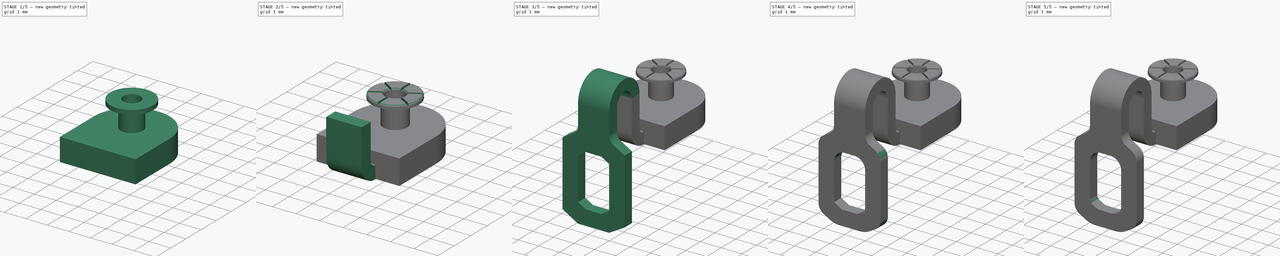
[diagram: build sequence overview — one tinted view per stage of 5, left to right]
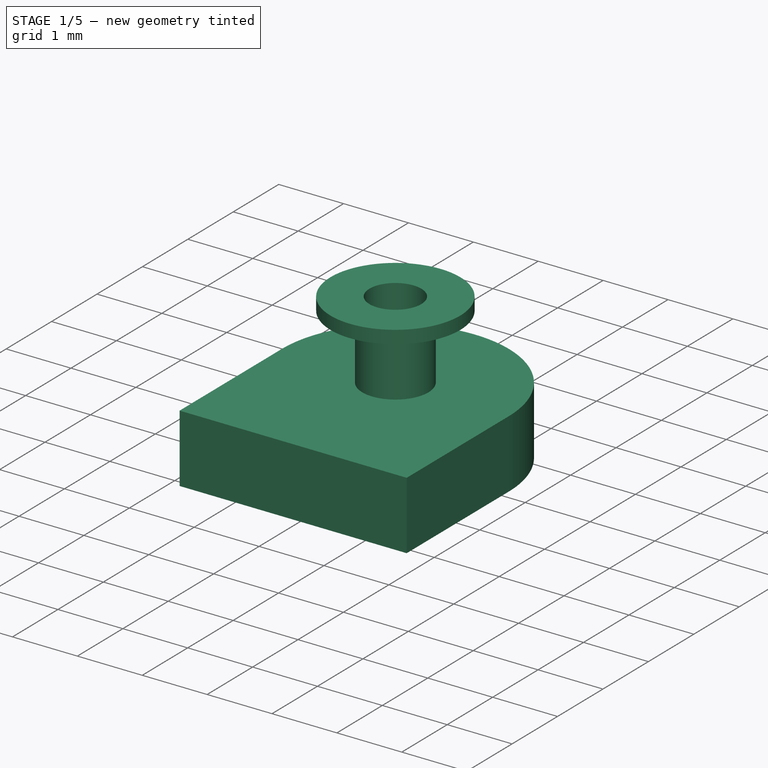
[diagram: stage 1 of 5 — iso view after this stage's code; geometry added in this stage tinted green]
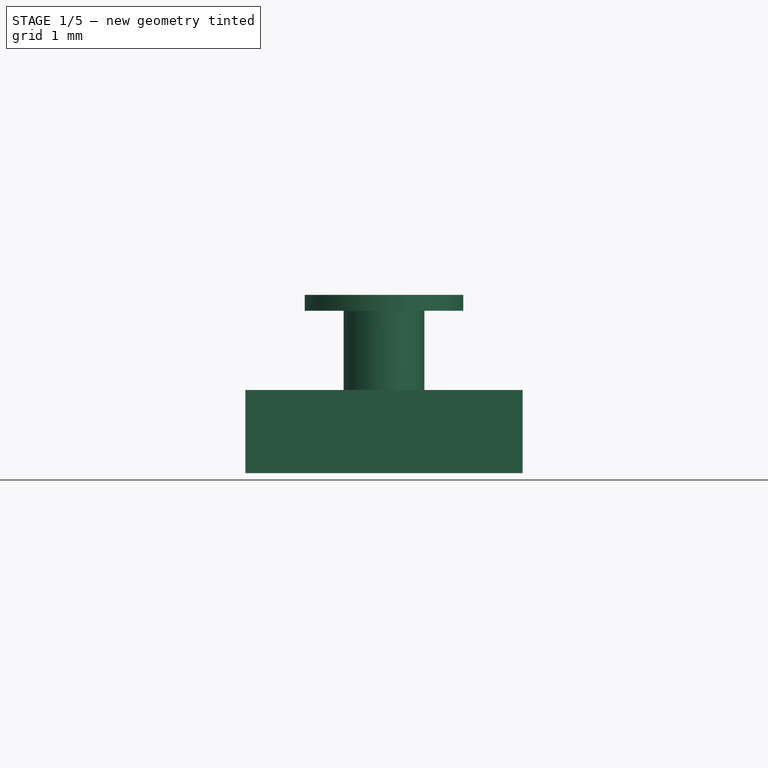
[diagram: stage 1 of 5 — front view after this stage's code; geometry added in this stage tinted green]
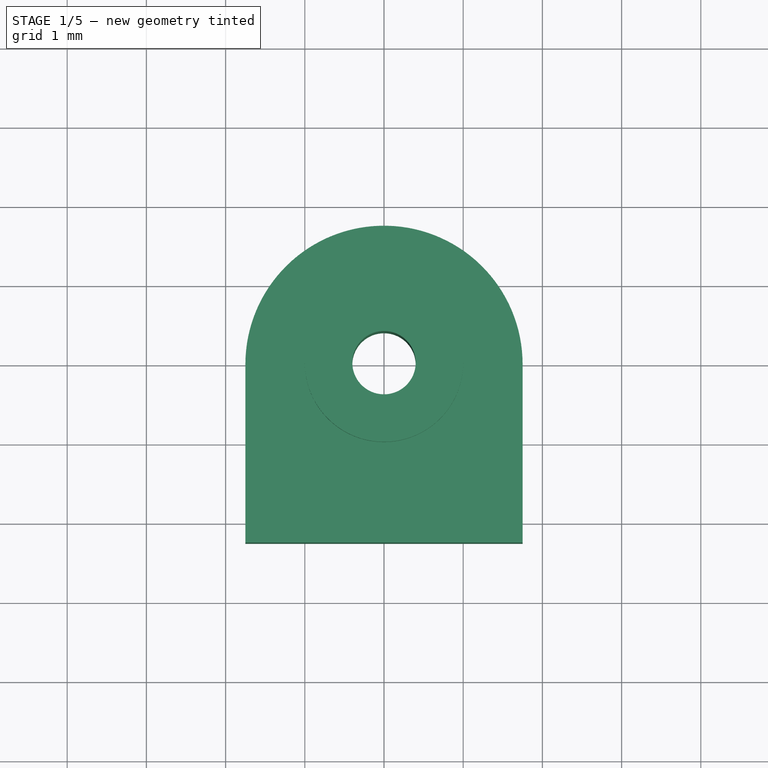
[diagram: stage 1 of 5 — top view after this stage's code; geometry added in this stage tinted green]
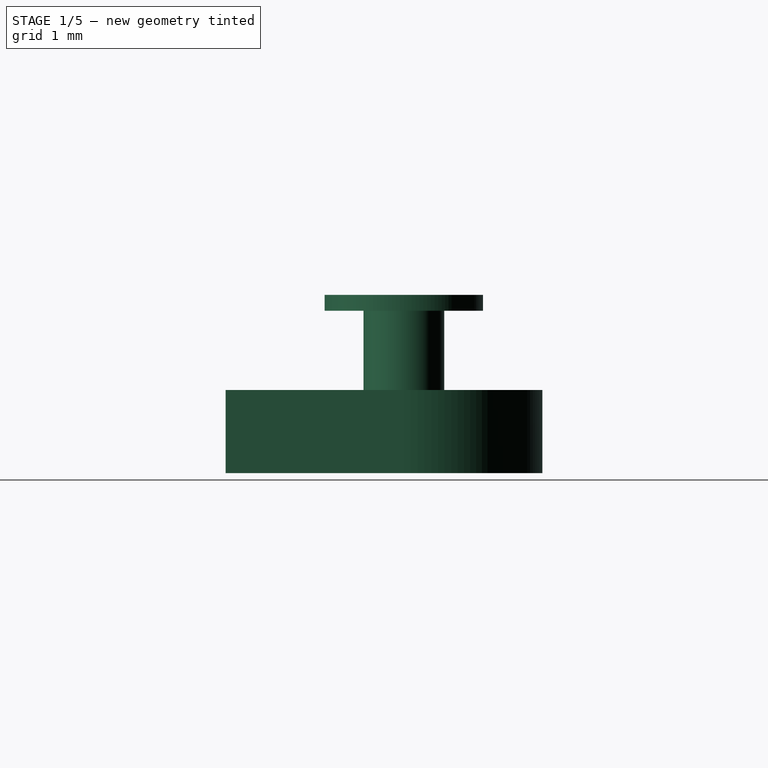
[diagram: stage 1 of 5 — right view after this stage's code; geometry added in this stage tinted green]
FCSTD DOCUMENT  (FreeCAD 0.19R16699 (Git))
Label: RV16A01_Terminal_Type_10_3x
License: All rights reserved
LicenseURL: http://en.wikipedia.org/wiki/All_rights_reserved
objects: PartDesign::Fillet×10, Sketcher::SketchObject×7, PartDesign::Pad×5, PartDesign::Body×3, PartDesign::Pocket×2, PartDesign::FeaturePython×2, PartDesign::FeatureBase×2, PartDesign::PolarPattern×1, App::Part×1
note: 39 computed .brp shape members not serialized (recipe doc carries the construction recipe); baked Part::Feature solids carry a one-line shape summary decoded from their .brp

FEATURE [Sketcher::SketchObject] Sketch
  MapMode = 5
  Support = -> [XY_Plane]
  sketch-geometry (8):
    g0: Circle CenterX=0 CenterY=0 CenterZ=0 NormalX=0 NormalY=0 NormalZ=1 AngleXU=0 Radius=0.5
    g1: ArcOfCircle CenterX=0 CenterY=0 CenterZ=0 NormalX=0 NormalY=0 NormalZ=1 AngleXU=0 Radius=1.75 StartAngle=0 EndAngle=3.14159
    g2: LineSegment StartX=1.75 StartY=-2.25 StartZ=0 EndX=1.75 EndY=0 EndZ=0
    g3: LineSegment StartX=-1.75 StartY=2e-16 StartZ=0 EndX=-1.75 EndY=-2.25 EndZ=0
    g4: GeomPoint X=0 Y=1.75 Z=0
    g5: LineSegment StartX=-0.75 StartY=-2.25 StartZ=0 EndX=0.75 EndY=-2.25 EndZ=0
    g6: LineSegment StartX=-0.75 StartY=-2.25 StartZ=0 EndX=-1.75 EndY=-2.25 EndZ=0
    g7: LineSegment StartX=0.75 StartY=-2.25 StartZ=0 EndX=1.75 EndY=-2.25 EndZ=0
  constraints (21):
    c: Radius(g0) = 0.5
    c: Coincident(g1,g0)
    c: Coincident(g2,g1)
    c: Vertical(g2)
    c: Coincident(g3,g1)
    c: PointOnObject(g4,g1)
    c: Coincident(g0,g-1)
    c: Vertical(g3)
    c: PointOnObject(g1,g-1)
    c: PointOnObject(g1,g-1)
    c: PointOnObject(g4,g-2)
    c: Symmetric(g5,g5,g-2)
    c: DistanceX(g5,g5) = 1.5
    c: Coincident(g6,g5)
    c: Horizontal(g6)
    c: Coincident(g7,g5)
    c: Horizontal(g7)
    c: Coincident(g3,g6)
    c: Coincident(g2,g7)
    c: DistanceX(g3,g2) = 3.5
    c: DistanceY(g3,g3) = 2.25
FEATURE [PartDesign::Pad] Pad
  Length = 0.5
  Length2 = 0.55
  Profile = -> Sketch
  Type = 4
FEATURE [Sketcher::SketchObject] Sketch002
  MapMode = 5
  Support = -> [XY_Plane]
  sketch-geometry (2):
    g0: Circle CenterX=0 CenterY=0 CenterZ=0 NormalX=0 NormalY=0 NormalZ=1 AngleXU=0 Radius=0.51
    g1: Circle CenterX=0 CenterY=0 CenterZ=0 NormalX=0 NormalY=0 NormalZ=1 AngleXU=0 Radius=0.4
  constraints (4):
    c: Coincident(g0,g-1)
    c: Coincident(g1,g0)
    c: Radius(g0) = 0.51
    c: Radius(g1) = 0.4
FEATURE [PartDesign::Pad] Pad001
  BaseFeature = -> Pad
  Length = 1.5
  Length2 = 100
  Profile = -> Sketch002
  Type = 0
FEATURE [Sketcher::SketchObject] Sketch003
  AttachmentOffset = pos=(0,0,1.5) rot=(0,0,1;0rad)
  MapMode = 5
  Placement = pos=(0,0,1.5) rot=(0,0,1;0rad)
  Support = -> [XY_Plane]
  sketch-geometry (1):
    g0: Circle CenterX=0 CenterY=0 CenterZ=0 NormalX=0 NormalY=0 NormalZ=1 AngleXU=0 Radius=1
  constraints (2):
    c: Coincident(g0,g-1)
    c: Radius(g0) = 1
FEATURE [PartDesign::Pad] Pad002
  BaseFeature = -> Pad001
  Length = 0.2
  Length2 = 100
  Profile = -> Sketch003
  Type = 0
FEATURE [Sketcher::SketchObject] Sketch004
  AttachmentOffset = pos=(0,0,1.7) rot=(0,0,1;0rad)
  MapMode = 5
  Placement = pos=(0,0,1.7) rot=(0,0,1;0rad)
  Support = -> [XY_Plane]
  sketch-geometry (1):
    g0: Circle CenterX=0 CenterY=0 CenterZ=0 NormalX=0 NormalY=0 NormalZ=1 AngleXU=0 Radius=0.4
  constraints (2):
    c: Coincident(g0,g-1)
    c: Radius(g0) = 0.4
FEATURE [PartDesign::Pocket] Pocket001
  BaseFeature = -> Pad002
  Length = 1
  Length2 = 100
  Profile = -> Sketch004
  Type = 0
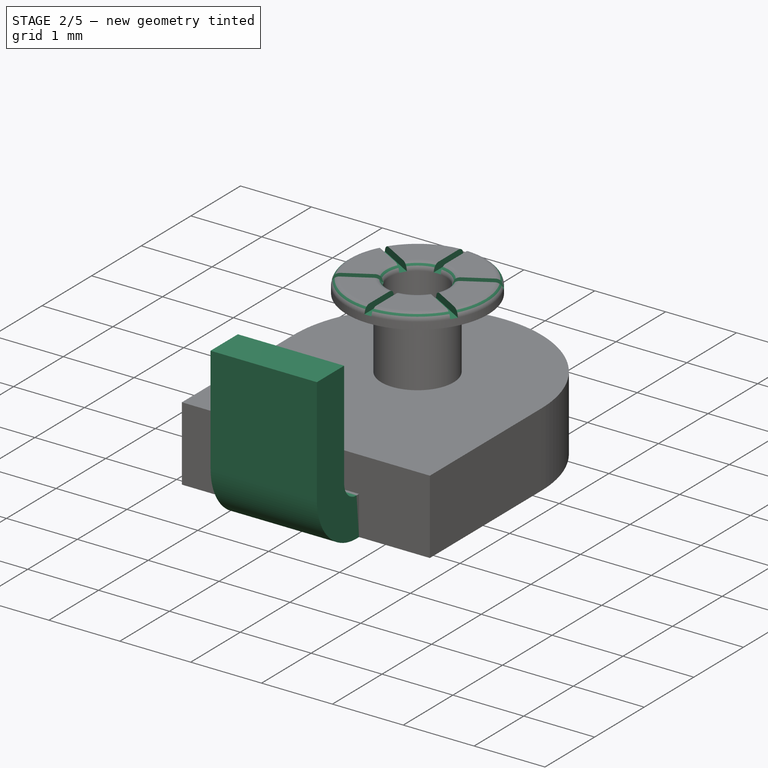
[diagram: stage 2 of 5 — iso view after this stage's code; geometry added in this stage tinted green]
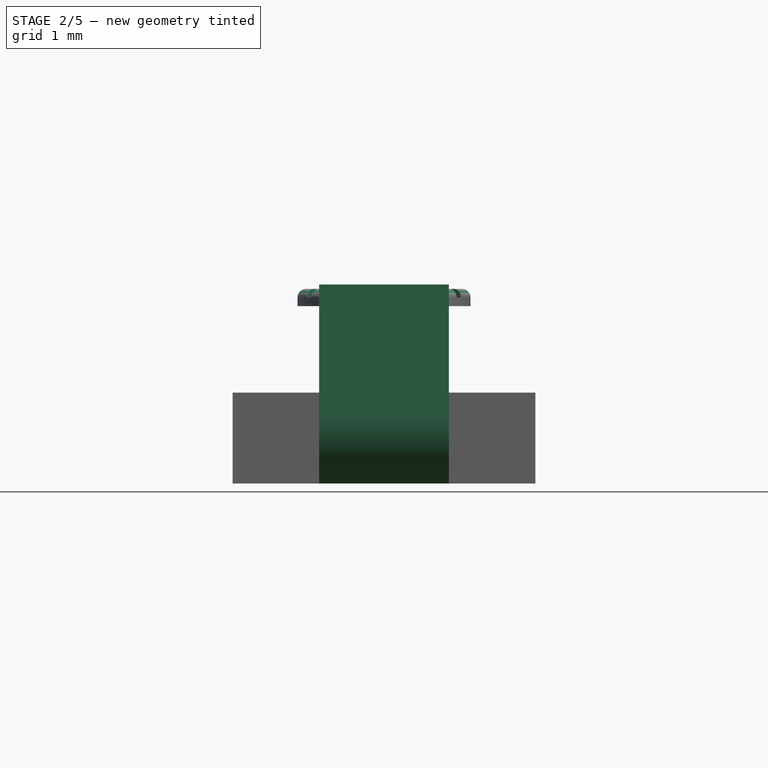
[diagram: stage 2 of 5 — front view after this stage's code; geometry added in this stage tinted green]
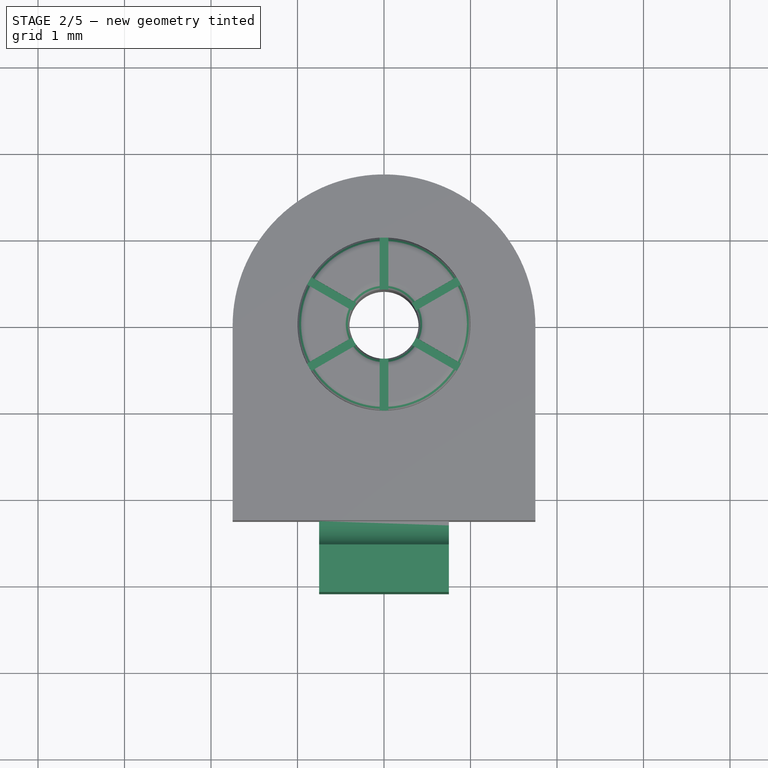
[diagram: stage 2 of 5 — top view after this stage's code; geometry added in this stage tinted green]
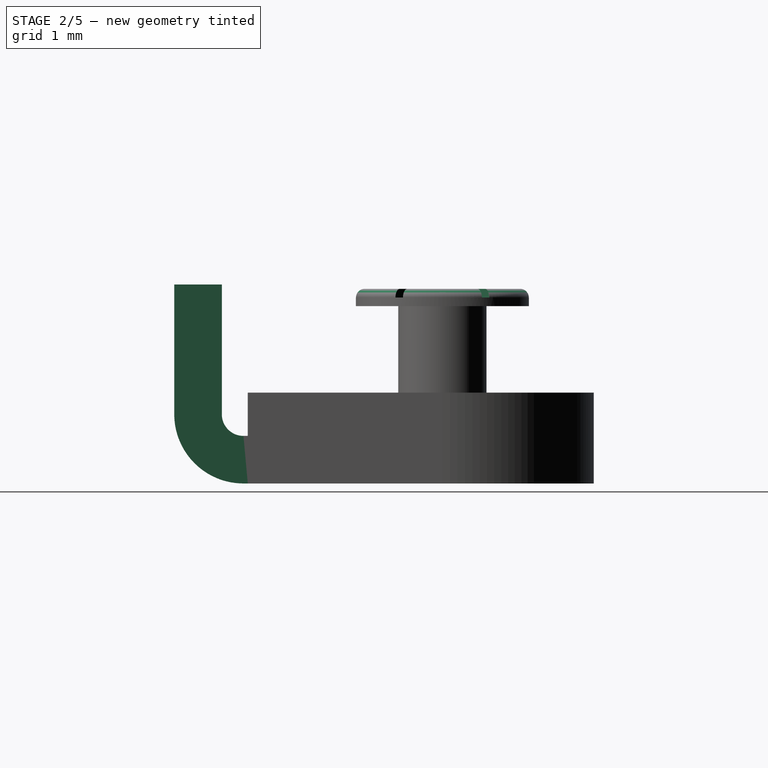
[diagram: stage 2 of 5 — right view after this stage's code; geometry added in this stage tinted green]
FEATURE [Sketcher::SketchObject] Sketch005
  AttachmentOffset = pos=(0,0,1.7) rot=(0,0,1;0rad)
  MapMode = 5
  Placement = pos=(0,0,1.7) rot=(0,0,1;0rad)
  Support = -> [XY_Plane]
  sketch-geometry (4):
    g0: LineSegment StartX=-0.05 StartY=0 StartZ=0 EndX=-0.05 EndY=1.7847 EndZ=0
    g1: LineSegment StartX=0.05 StartY=1.7847 StartZ=0 EndX=0.05 EndY=0 EndZ=0
    g2: LineSegment StartX=-0.05 StartY=1.7847 StartZ=0 EndX=0.05 EndY=1.7847 EndZ=0
    g3: LineSegment StartX=-0.05 StartY=0 StartZ=0 EndX=0.05 EndY=0 EndZ=0
  constraints (10):
    c: PointOnObject(g0,g-1)
    c: Vertical(g0)
    c: PointOnObject(g1,g-1)
    c: Vertical(g1)
    c: Coincident(g2,g0)
    c: Coincident(g2,g1)
    c: Coincident(g3,g0)
    c: Coincident(g3,g1)
    c: DistanceX(g2,g2) = 0.1
    c: Symmetric(g1,g0,g-2)
FEATURE [PartDesign::Fillet] Fillet
  Base = -> Pocket001 [Edge5,Edge3]
  BaseFeature = -> Pocket001
  Radius = 0.1
FEATURE [PartDesign::Pocket] Pocket002
  BaseFeature = -> Fillet
  Length = 0.1
  Length2 = 100
  Profile = -> Sketch005
  Type = 0
FEATURE [PartDesign::PolarPattern] PolarPattern
  Angle = 360
  Axis = -> Sketch005 [N_Axis]
  BaseFeature = -> Pocket002
  Occurrences = 6
  Originals = -> [Pocket002]
FEATURE [Sketcher::SketchObject] Sketch006
  AttachmentOffset = pos=(0,0,2.25) rot=(0,0,1;0rad)
  MapMode = 5
  Placement = pos=(0,-2.25,-5e-16) rot=(1,0,0;1.5708rad)
  Support = -> [XZ_Plane]
  sketch-geometry (4):
    g0: LineSegment StartX=-0.75 StartY=-0.55 StartZ=0 EndX=0.75 EndY=-0.55 EndZ=0
    g1: LineSegment StartX=0.75 StartY=-0.55 StartZ=0 EndX=0.75 EndY=0 EndZ=0
    g2: LineSegment StartX=0.75 StartY=0 StartZ=0 EndX=-0.75 EndY=0 EndZ=0
    g3: LineSegment StartX=-0.75 StartY=0 StartZ=0 EndX=-0.75 EndY=-0.55 EndZ=0
  constraints (11):
    c: Coincident(g0,g1)
    c: Coincident(g1,g2)
    c: Coincident(g2,g3)
    c: Coincident(g3,g0)
    c: Horizontal(g0)
    c: Vertical(g1)
    c: Vertical(g3)
    c: Symmetric(g1,g2,g-2)
    c: DistanceX(g2,g2) = 1.5
    c: DistanceY(g3,g3) = 0.55
    c: PointOnObject(g1,g-1)
FEATURE [PartDesign::Pad] Pad003
  BaseFeature = -> PolarPattern
  Length = 0.05
  Length2 = 100
  Profile = -> Sketch006
  Type = 0
FEATURE [PartDesign::FeaturePython] Bend  # WARN: FeaturePython — macro-defined, semantics opaque (R4)
  AutoMiter = true
  BaseFeature = -> Pad003
  BendType = 0
  LengthList = [1.5]
  ReliefFactor = 0.7
  UseReliefFactor = false
  angle = 90
  baseObject = -> Pad003 [Face59]
  bendAList = [90]
  extend1 = 0
  extend2 = 0
  gap1 = 0
  gap2 = 0
  invert = false
  kfactor = 0.5
  length = 1.5
  miterangle1 = 0
  miterangle2 = 0
  offset = 0
  radius = 0.25
  reliefType = 0
  reliefd = 1
  reliefw = 0.8
  sketchflip = false
  sketchinvert = false
  unfold = false
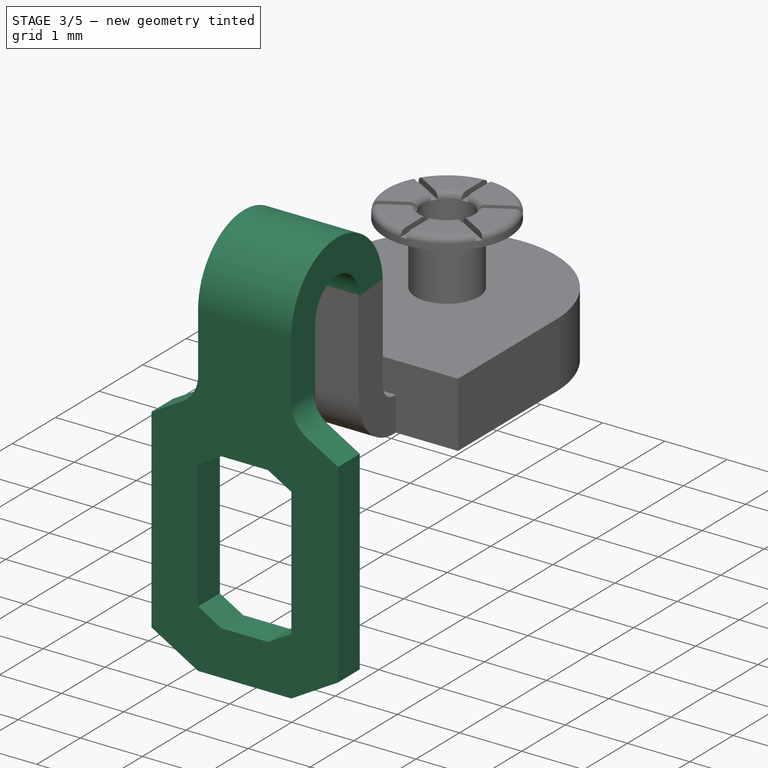
[diagram: stage 3 of 5 — iso view after this stage's code; geometry added in this stage tinted green]
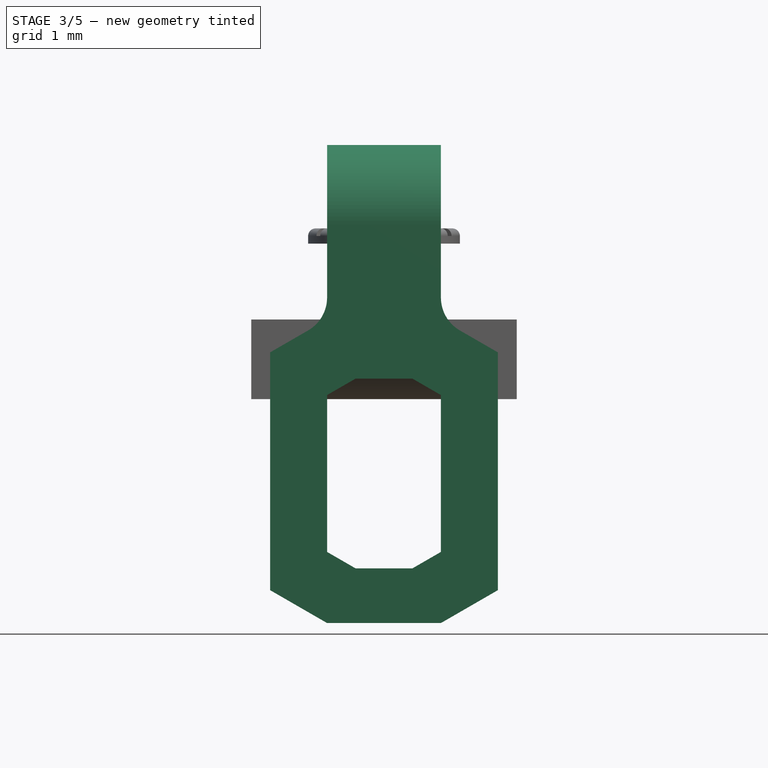
[diagram: stage 3 of 5 — front view after this stage's code; geometry added in this stage tinted green]
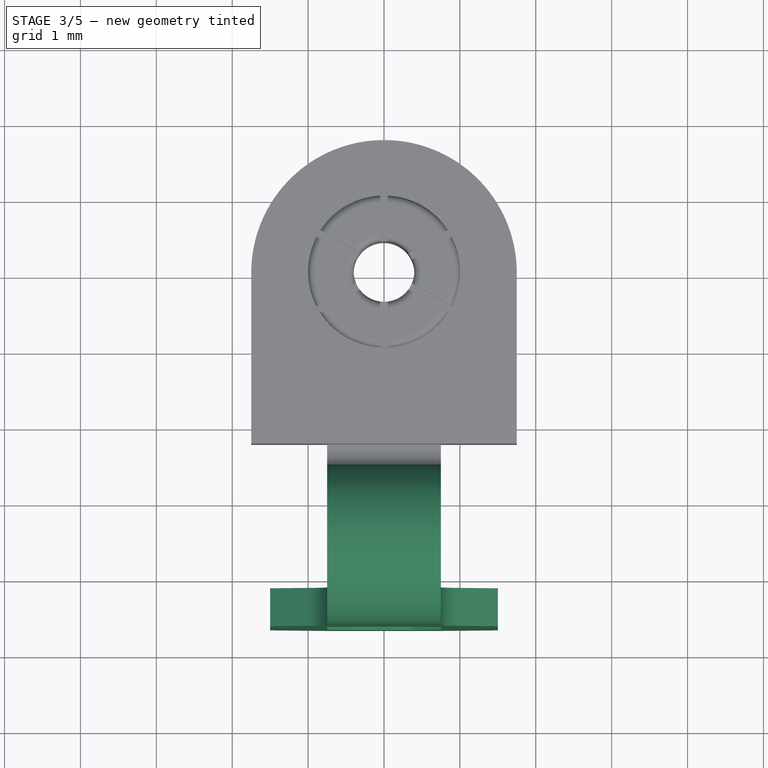
[diagram: stage 3 of 5 — top view after this stage's code; geometry added in this stage tinted green]
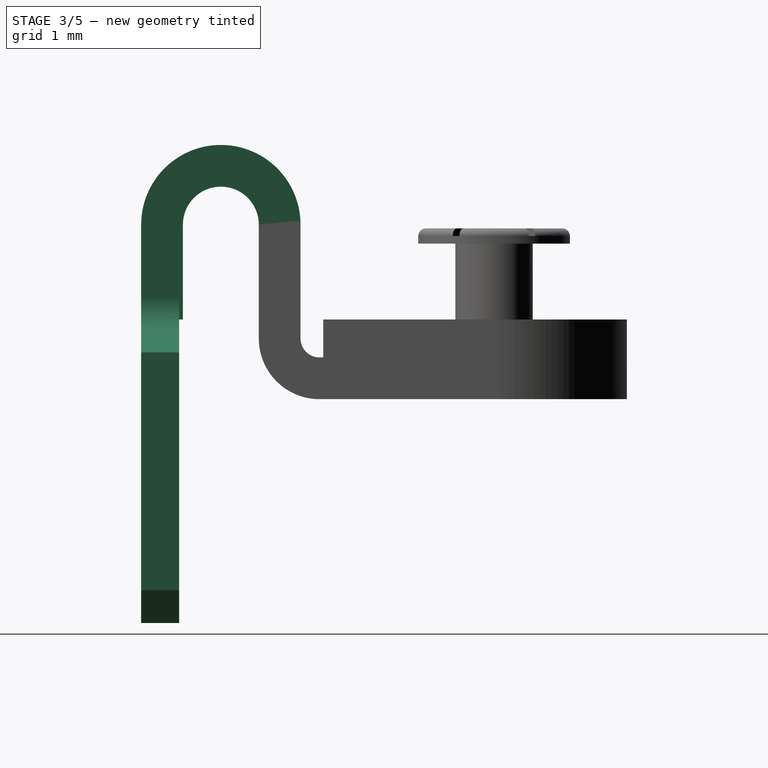
[diagram: stage 3 of 5 — right view after this stage's code; geometry added in this stage tinted green]
FEATURE [PartDesign::FeaturePython] Bend001  # WARN: FeaturePython — macro-defined, semantics opaque (R4)
  AutoMiter = true
  BaseFeature = -> Bend
  BendType = 0
  LengthList = [1.25]
  ReliefFactor = 0.7
  UseReliefFactor = false
  angle = -180
  baseObject = -> Bend [Face3]
  bendAList = [-180]
  extend1 = 0
  extend2 = 0
  gap1 = 0
  gap2 = 0
  invert = false
  kfactor = 0.5
  length = 1.25
  miterangle1 = 0
  miterangle2 = 0
  offset = 0
  radius = 0.5
  reliefType = 0
  reliefd = 1
  reliefw = 0.8
  sketchflip = false
  sketchinvert = false
  unfold = false
FEATURE [Sketcher::SketchObject] Sketch014
  ExternalGeometry = -> [Bend001]
  MapMode = 5
  Placement = pos=(0,-4.65,-1.7e-15) rot=(1,0,0;1.5708rad)
  Support = -> [Bend001]
  sketch-geometry (16):
    g0: LineSegment StartX=0.75 StartY=0.5 StartZ=0 EndX=-0.75 EndY=0.5 EndZ=0
    g1: LineSegment StartX=-0.75 StartY=0.5 StartZ=0 EndX=-1.5 EndY=0.0669873 EndZ=0
    g2: LineSegment StartX=-1.5 StartY=0.0669873 StartZ=0 EndX=-1.5 EndY=-3.06699 EndZ=0
    g3: LineSegment StartX=-1.5 StartY=-3.06699 StartZ=0 EndX=-0.75 EndY=-3.5 EndZ=0
    g4: LineSegment StartX=-0.75 StartY=-3.5 StartZ=0 EndX=0.75 EndY=-3.5 EndZ=0
    g5: LineSegment StartX=0.75 StartY=-3.5 StartZ=0 EndX=1.5 EndY=-3.06699 EndZ=0
    g6: LineSegment StartX=1.5 StartY=-3.06699 StartZ=0 EndX=1.5 EndY=0.0669873 EndZ=0
    g7: LineSegment StartX=1.5 StartY=0.0669873 StartZ=0 EndX=0.75 EndY=0.5 EndZ=0
    g8: LineSegment StartX=0.375 StartY=-0.279306 StartZ=0 EndX=-0.375 EndY=-0.279306 EndZ=0
    g9: LineSegment StartX=-0.375 StartY=-0.279306 StartZ=0 EndX=-0.75 EndY=-0.495812 EndZ=0
    g10: LineSegment StartX=-0.75 StartY=-0.495812 StartZ=0 EndX=-0.75 EndY=-2.5628 EndZ=0
    g11: LineSegment StartX=-0.75 StartY=-2.5628 StartZ=0 EndX=-0.375 EndY=-2.77931 EndZ=0
    g12: LineSegment StartX=-0.375 StartY=-2.77931 StartZ=0 EndX=0.375 EndY=-2.77931 EndZ=0
    g13: LineSegment StartX=0.375 StartY=-2.77931 StartZ=0 EndX=0.75 EndY=-2.5628 EndZ=0
    g14: LineSegment StartX=0.75 StartY=-2.5628 StartZ=0 EndX=0.75 EndY=-0.495812 EndZ=0
    g15: LineSegment StartX=0.75 StartY=-0.495812 StartZ=0 EndX=0.375 EndY=-0.279306 EndZ=0
  constraints (39):
    c: Coincident(g-3,g0)
    c: Coincident(g0,g-3)
    c: Coincident(g0,g1)
    c: Coincident(g1,g2)
    c: Vertical(g2)
    c: Coincident(g2,g3)
    c: Coincident(g3,g4)
    c: Coincident(g4,g5)
    c: Coincident(g5,g6)
    c: Coincident(g6,g7)
    c: Coincident(g7,g0)
    c: DistanceX(g1,g6) = 3
    c: Angle(g5,g3) = 2.0944
    c: Symmetric(g3,g4,g-2)
    c: Angle(g1,g7) = 2.0944
    c: Symmetric(g6,g1,g-2)
    c: Symmetric(g5,g2,g-2)
    c: DistanceY(g4,g0) = 4
    c: Equal(g4,g0)
    c: Coincident(g8,g9)
    c: Coincident(g9,g10)
    c: Vertical(g10)
    c: Coincident(g10,g11)
    c: Coincident(g11,g12)
    c: Coincident(g12,g13)
    c: Coincident(g13,g14)
    c: Vertical(g14)
    c: Coincident(g14,g15)
    c: Coincident(g15,g8)
    c: DistanceY(g12,g8) = 2.5
    c: DistanceX(g9,g14) = 1.5
    c: Symmetric(g8,g8,g-2)
    c: Symmetric(g12,g11,g-2)
    c: Equal(g8,g12)
    c: Symmetric(g14,g9,g-2)
    c: Angle(g9,g15) = 2.0944
    c: Angle(g13,g11) = 2.0944
    c: DistanceX(g8,g8) = 0.75
    c: Horizontal(g13,g10)
FEATURE [PartDesign::Pad] Pad006
  BaseFeature = -> Bend001
  Length = 0.5
  Length2 = 100
  Profile = -> Sketch014
  Reversed = true
  Type = 0
FEATURE [PartDesign::Fillet] Fillet001
  Base = -> Pad006 [Edge1]
  BaseFeature = -> Pad006
  Radius = 0.5
FEATURE [PartDesign::Fillet] Fillet002
  Base = -> Fillet001 [Edge45]
  BaseFeature = -> Fillet001
  Radius = 0.5
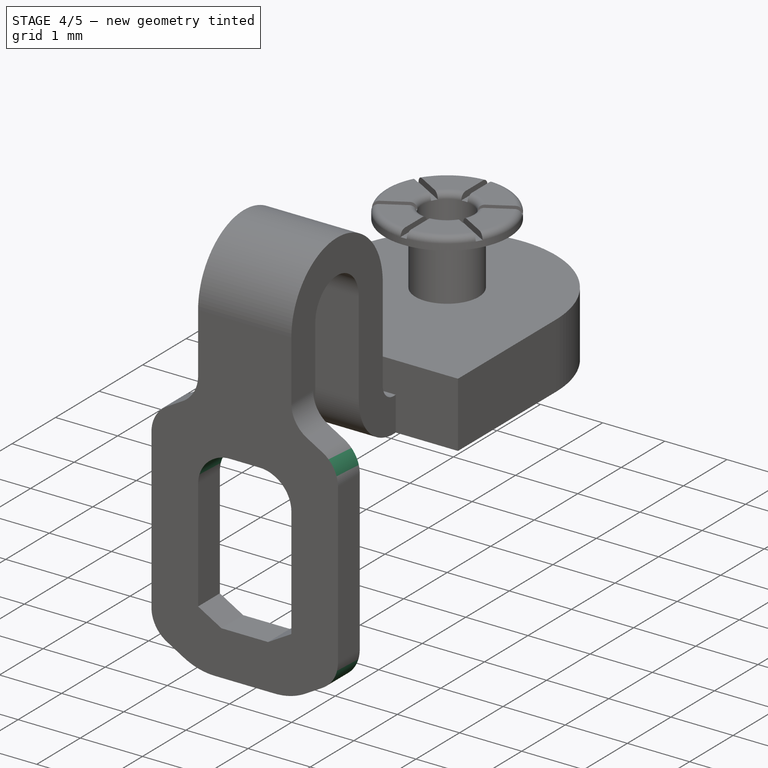
[diagram: stage 4 of 5 — iso view after this stage's code; geometry added in this stage tinted green]
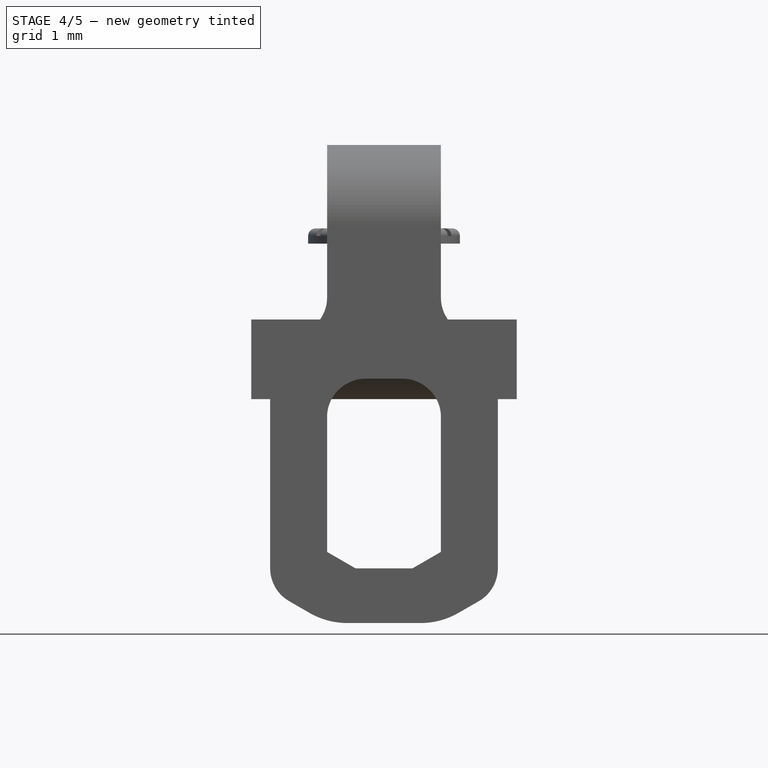
[diagram: stage 4 of 5 — front view after this stage's code; geometry added in this stage tinted green]
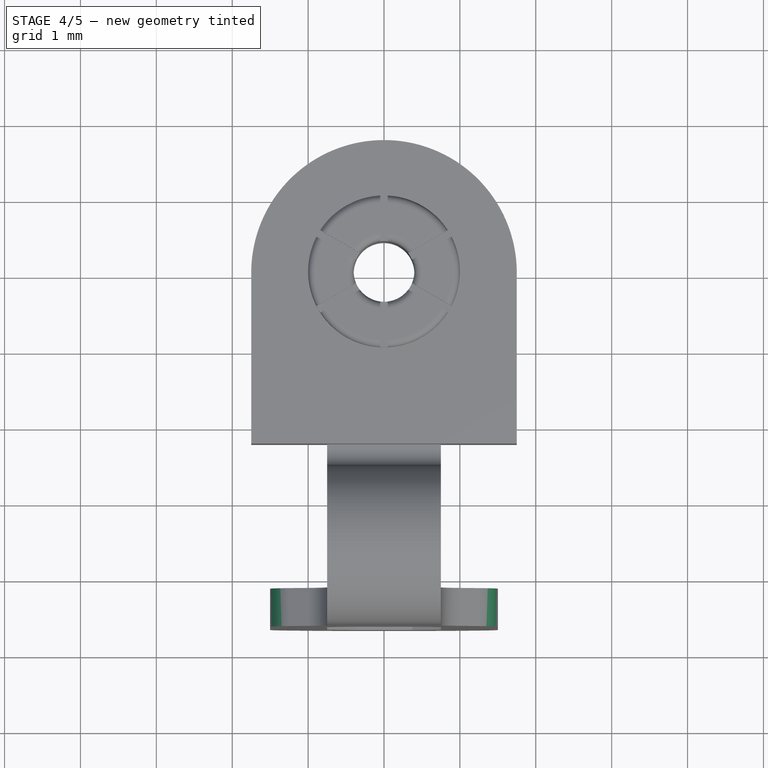
[diagram: stage 4 of 5 — top view after this stage's code; geometry added in this stage tinted green]
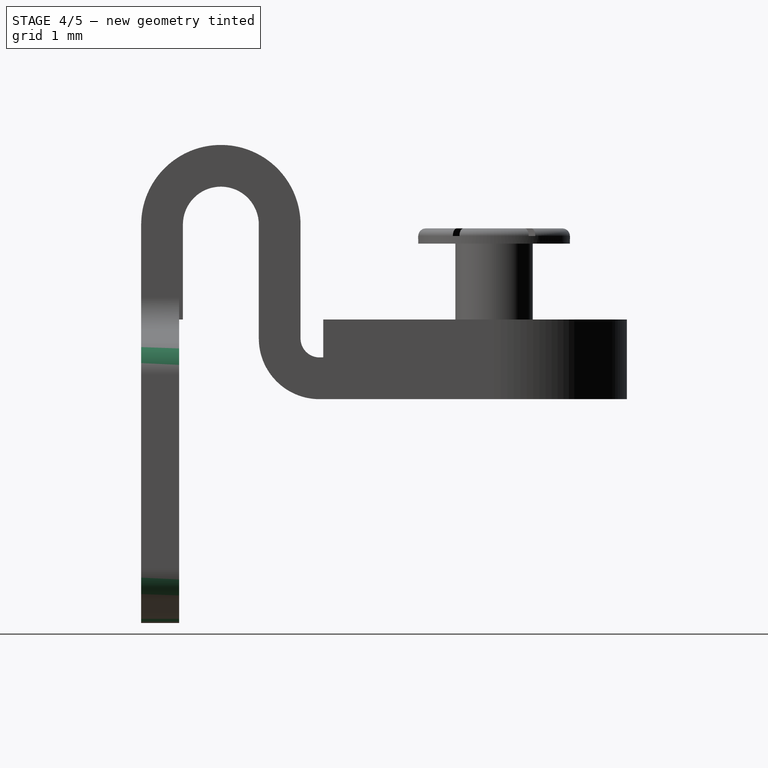
[diagram: stage 4 of 5 — right view after this stage's code; geometry added in this stage tinted green]
FEATURE [PartDesign::Fillet] Fillet003
  Base = -> Fillet002 [Edge30,Edge32]
  BaseFeature = -> Fillet002
  Radius = 0.5
FEATURE [PartDesign::Fillet] Fillet004
  Base = -> Fillet003 [Edge44,Edge29]
  BaseFeature = -> Fillet003
  Radius = 0.5
FEATURE [PartDesign::Fillet] Fillet005
  Base = -> Fillet004 [Edge34,Edge30]
  BaseFeature = -> Fillet004
  Radius = 1
FEATURE [PartDesign::Fillet] Fillet006
  Base = -> Fillet005 [Edge62,Edge74]
  BaseFeature = -> Fillet005
  Radius = 0.5
FEATURE [PartDesign::Fillet] Fillet007
  Base = -> Fillet006 [Edge42,Edge28]
  BaseFeature = -> Fillet006
  Radius = 0.5
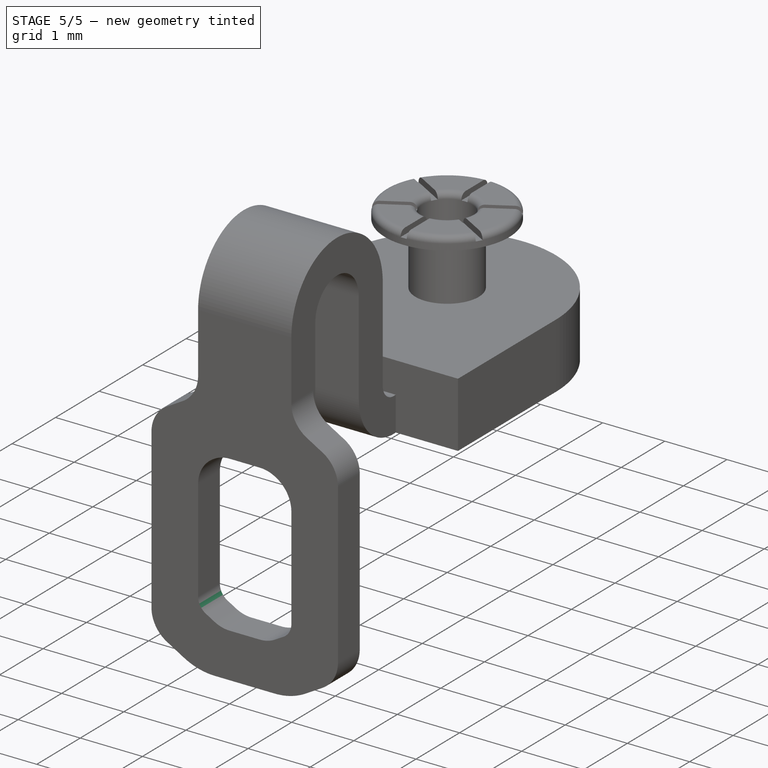
[diagram: stage 5 of 5 — iso view after this stage's code; geometry added in this stage tinted green]
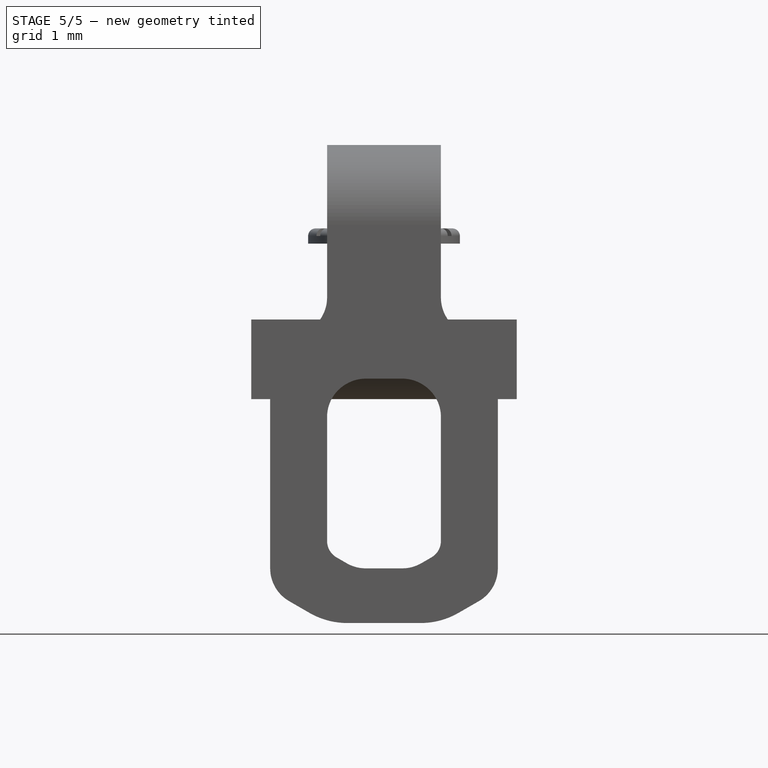
[diagram: stage 5 of 5 — front view after this stage's code; geometry added in this stage tinted green]
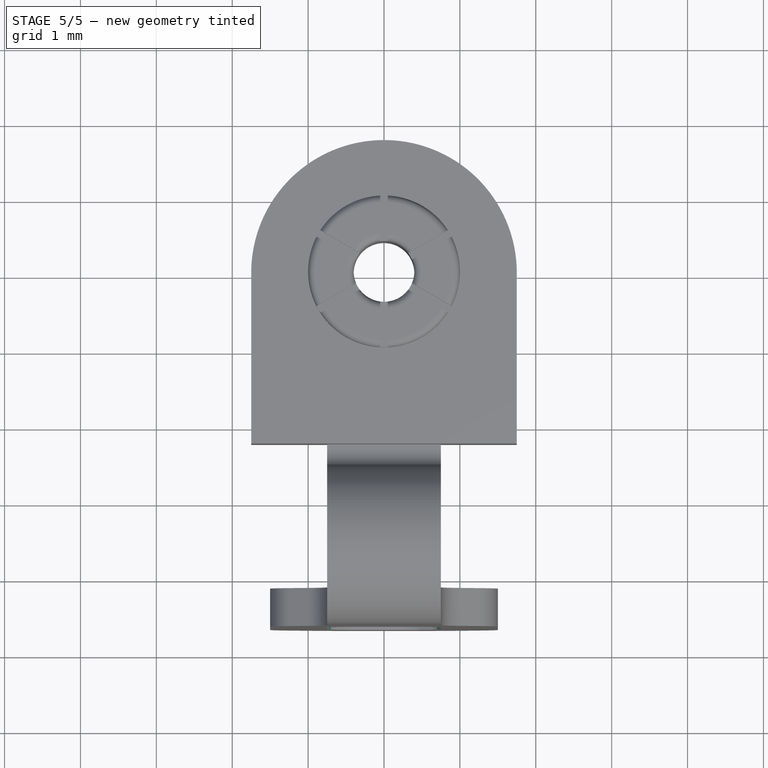
[diagram: stage 5 of 5 — top view after this stage's code; geometry added in this stage tinted green]
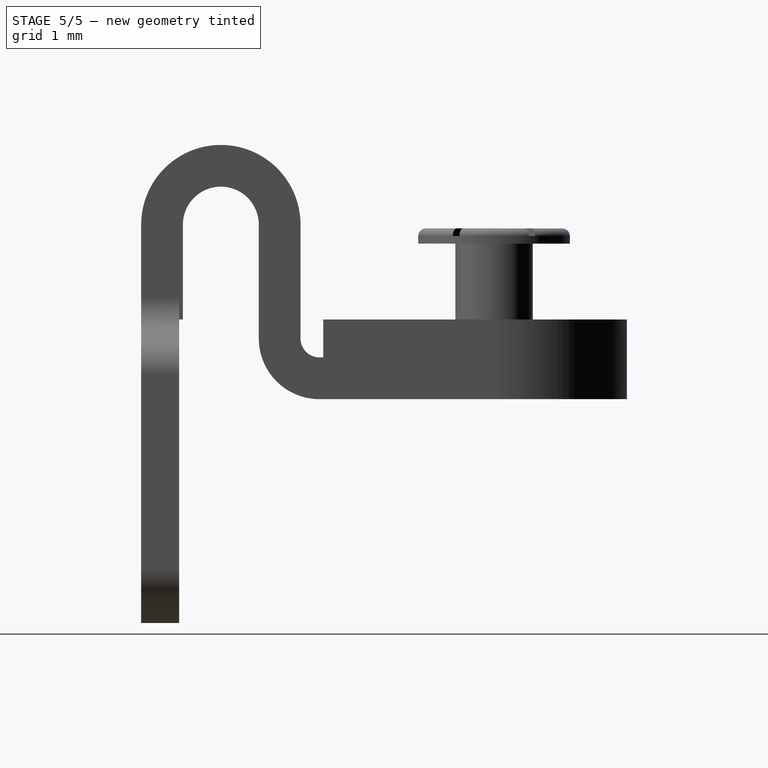
[diagram: stage 5 of 5 — right view after this stage's code; geometry added in this stage tinted green]
FEATURE [PartDesign::Fillet] Fillet008
  Base = -> Fillet007 [Edge44,Edge40]
  BaseFeature = -> Fillet007
  Radius = 0.5
FEATURE [PartDesign::Fillet] Fillet009
  Base = -> Fillet008 [Edge46,Edge32]
  BaseFeature = -> Fillet008
  Radius = 0.25
FEATURE [PartDesign::Body] Body  label="RV16_Terminal_Type_10_2"
  Group = -> [Sketch,Pad,Sketch002,Pad001,Sketch003,Pad002,Sketch004,Pocket001,Sketch005,Fillet,Pocket002,PolarPattern,Sketch006,Pad003,Bend,Bend001,Sketch014,Pad006,Fillet001,Fillet002,Fillet003,Fillet004,Fillet005,Fillet006,Fillet007,Fillet008,Fillet009]
  Origin = -> Origin
  Tip = -> Fillet009
FEATURE [PartDesign::FeatureBase] Clone
  BaseFeature = -> Body
FEATURE [PartDesign::Body] Body001  label="RV16_Terminal_Type_10_1"
  BaseFeature = -> Body
  Group = -> [Clone]
  Origin = -> Origin002
  Placement = pos=(-5,0,0) rot=(0,0,1;0rad)
  Tip = -> Clone
FEATURE [PartDesign::FeatureBase] Clone001
  BaseFeature = -> Body
FEATURE [PartDesign::Body] Body002  label="RV16_Terminal_Type_10_3"
  BaseFeature = -> Body
  Group = -> [Clone001]
  Origin = -> Origin003
  Placement = pos=(5,0,0) rot=(0,0,1;0rad)
  Tip = -> Clone001
FEATURE [App::Part] Part  label="RV16A01_Terminal_Type_10_3x"
  Group = -> [Body001,Body,Body002]
  Origin = -> Origin001
  Placement = pos=(0,-8.25,-9.5) rot=(0,0,1;0rad)
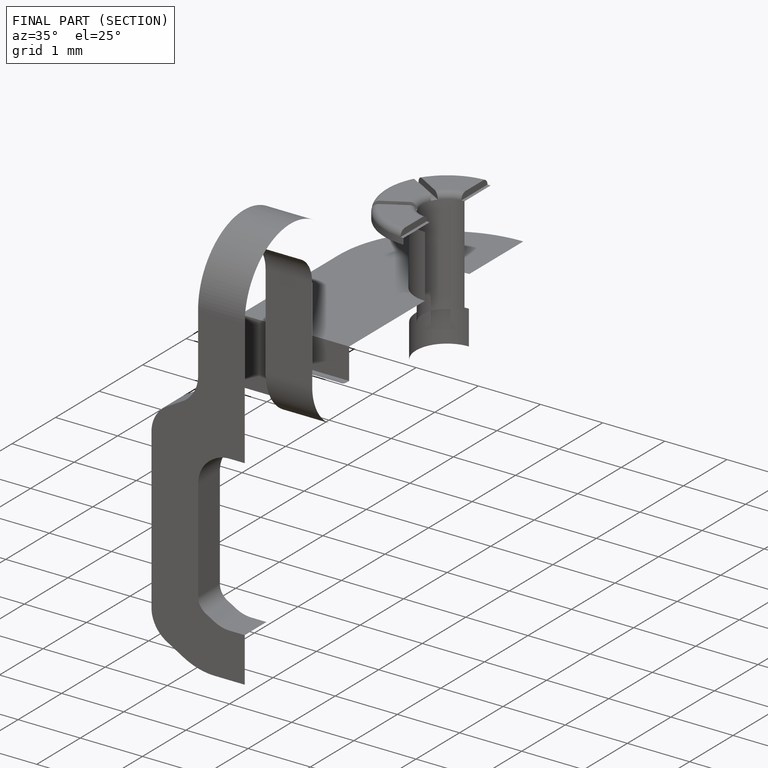
[diagram: finished part — half-section view (interior)]
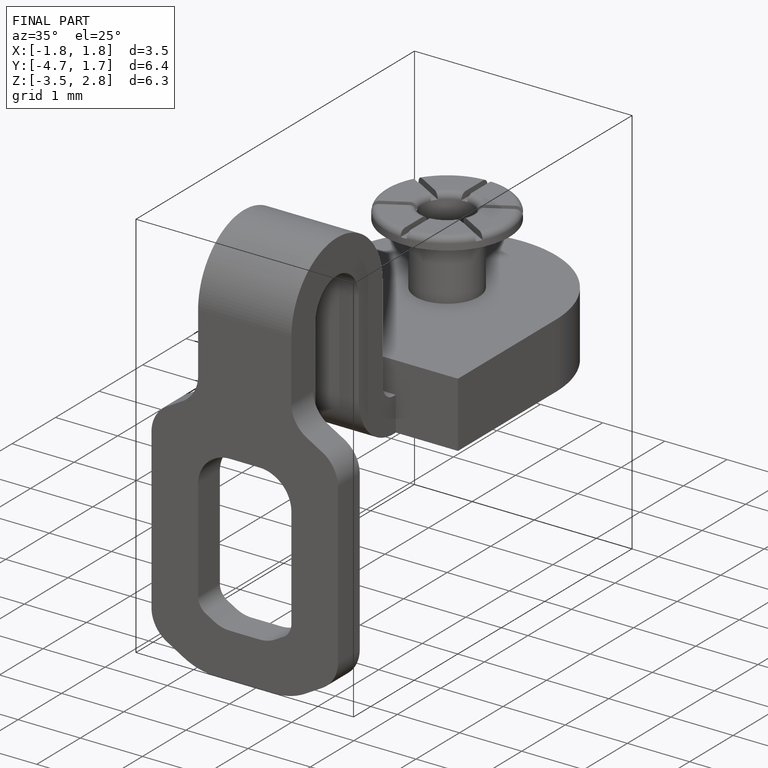
[diagram: finished part — iso view with bounding-box wireframe]
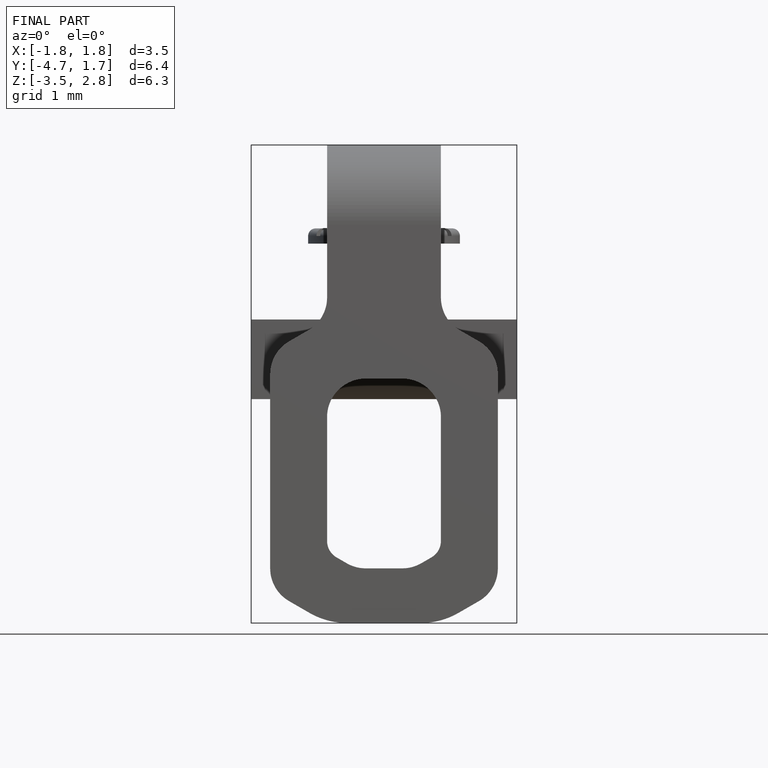
[diagram: finished part — front view with bounding-box wireframe]
